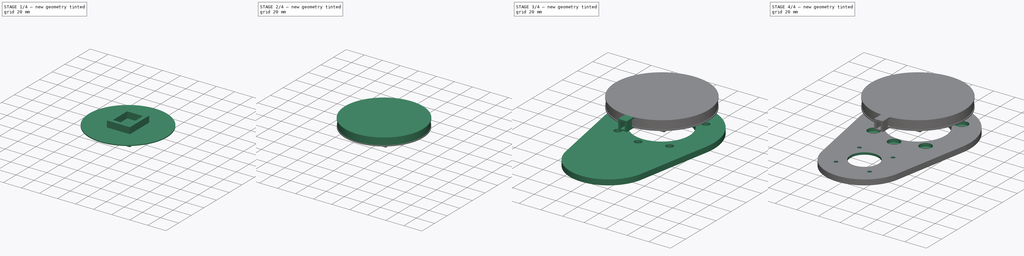
[diagram: build sequence overview — one tinted view per stage of 4, left to right]
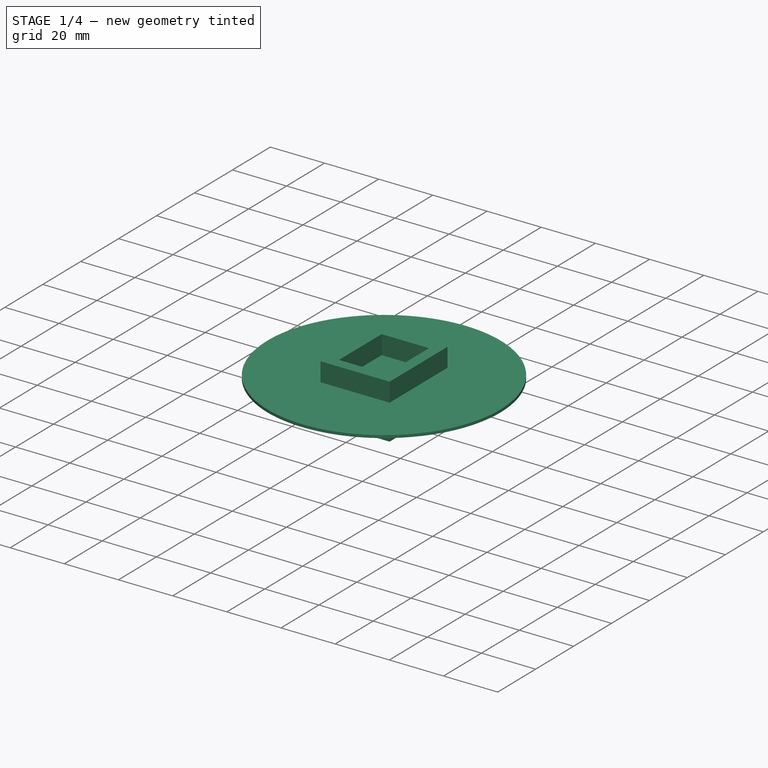
[diagram: stage 1 of 4 — iso view after this stage's code; geometry added in this stage tinted green]
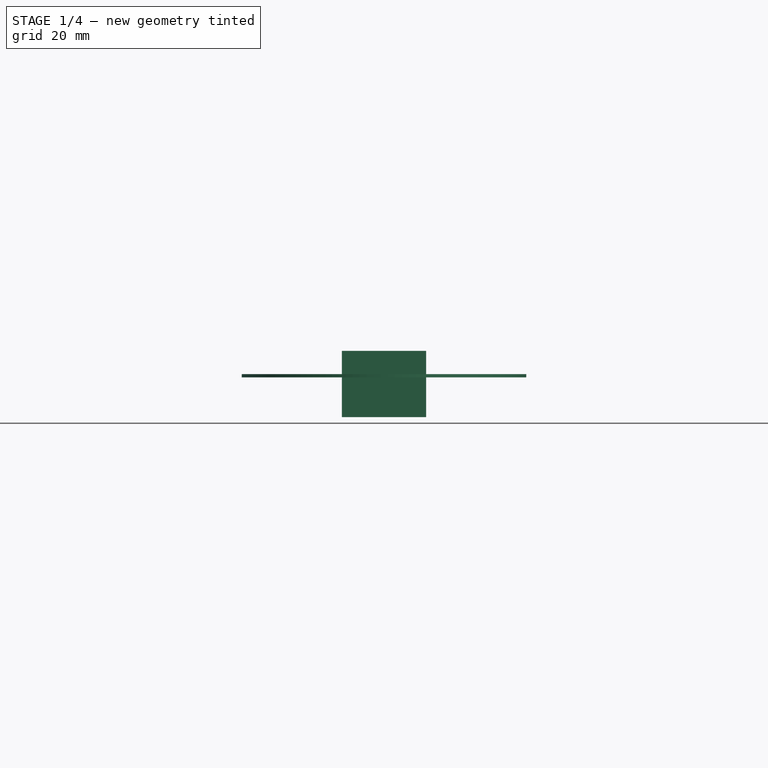
[diagram: stage 1 of 4 — front view after this stage's code; geometry added in this stage tinted green]
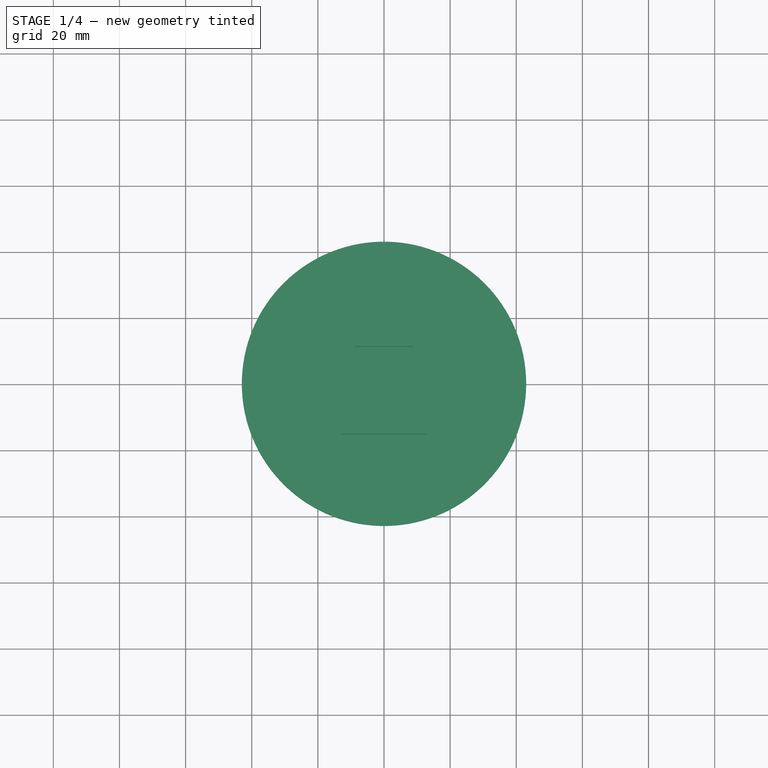
[diagram: stage 1 of 4 — top view after this stage's code; geometry added in this stage tinted green]
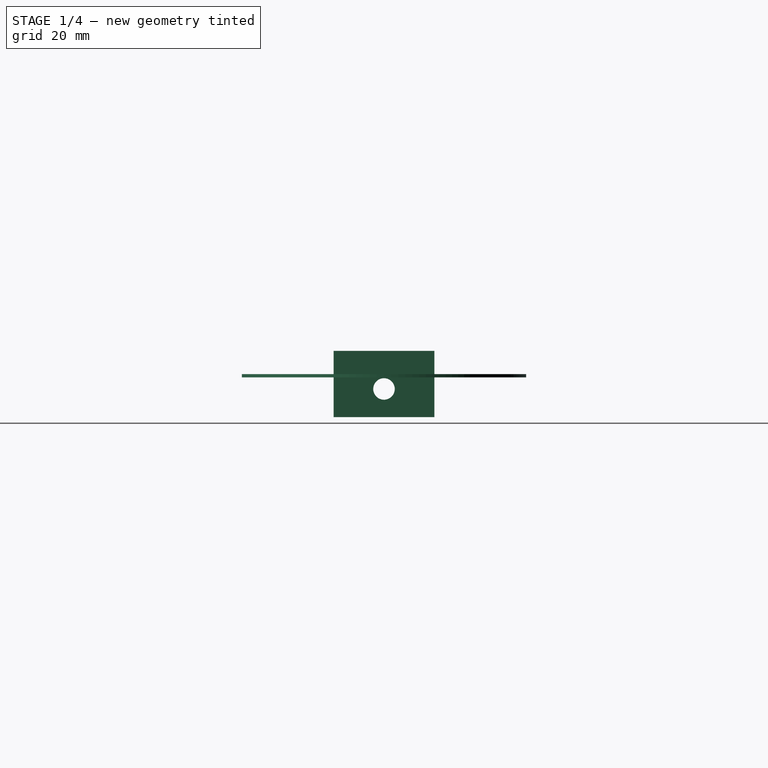
[diagram: stage 1 of 4 — right view after this stage's code; geometry added in this stage tinted green]
FCSTD DOCUMENT  (FreeCAD 0.21R33771 (Git))
Label: BypassMotor
License: All rights reserved
LicenseURL: http://en.wikipedia.org/wiki/All_rights_reserved
objects: Sketcher::SketchObject×12, PartDesign::Pocket×7, PartDesign::Pad×6, PartDesign::Body×2
note: 40 computed .brp shape members not serialized (recipe doc carries the construction recipe); baked Part::Feature solids carry a one-line shape summary decoded from their .brp

FEATURE [Sketcher::SketchObject] Sketch001  label="GearAttachmentSketch"
  AttachmentOffset = pos=(0,0,10) rot=(0,0,1;0rad)
  FullyConstrained = true
  MapMode = 5
  Placement = pos=(0,0,10) rot=(0,0,1;0rad)
  Support = -> [XY_Plane001]
  sketch-geometry (10):
    g0: LineSegment StartX=-8.75 StartY=11.25 StartZ=0 EndX=-8.75 EndY=-11.25 EndZ=0
    g1: LineSegment StartX=-8.75 StartY=-11.25 StartZ=0 EndX=8.75 EndY=-11.25 EndZ=0
    g2: LineSegment StartX=8.75 StartY=-11.25 StartZ=0 EndX=8.75 EndY=11.25 EndZ=0
    g3: LineSegment StartX=8.75 StartY=11.25 StartZ=0 EndX=-8.75 EndY=11.25 EndZ=0
    g4: GeomPoint X=0 Y=0 Z=0
    g5: LineSegment StartX=-12.75 StartY=15.25 StartZ=0 EndX=-12.75 EndY=-15.25 EndZ=0
    g6: LineSegment StartX=-12.75 StartY=-15.25 StartZ=0 EndX=12.75 EndY=-15.25 EndZ=0
    g7: LineSegment StartX=12.75 StartY=-15.25 StartZ=0 EndX=12.75 EndY=15.25 EndZ=0
    g8: LineSegment StartX=12.75 StartY=15.25 StartZ=0 EndX=-12.75 EndY=15.25 EndZ=0
    g9: GeomPoint X=0 Y=0 Z=0
  constraints (24):
    c: Coincident(g0,g1)
    c: Coincident(g1,g2)
    c: Coincident(g2,g3)
    c: Coincident(g3,g0)
    c: Horizontal(g1)
    c: Horizontal(g3)
    c: Vertical(g0)
    c: Vertical(g2)
    c: Symmetric(g1,g0,g4)
    c: Coincident(g5,g6)
    c: Coincident(g6,g7)
    c: Coincident(g7,g8)
    c: Coincident(g8,g5)
    c: Horizontal(g6)
    c: Horizontal(g8)
    c: Vertical(g5)
    c: Vertical(g7)
    c: Symmetric(g6,g5,g9)
    c: Coincident(g9,g4)
    c: DistanceX(g3,g3) = 17.5  'holeWidht'
    c: DistanceY(g2,g2) = 22.5  'holeHeight'
    c: DistanceX(g2,g7) = 4
    c: DistanceY(g2,g7) = 4
    c: Coincident(g4,g-1)
FEATURE [PartDesign::Pad] Pad001  label="GearAttachementPad"
  Direction = (0,0,1)
  Length = 20
  Length2 = 10
  Profile = -> Sketch001
  ReferenceAxis = -> Sketch001 [N_Axis]
  Type = 0
FEATURE [Sketcher::SketchObject] Sketch002  label="GearSkrewSketch"
  FullyConstrained = true
  MapMode = 5
  Placement = pos=(0,0,0) rot=(0.57735,0.57735,0.57735;2.0944rad)
  Support = -> [YZ_Plane001]
  sketch-geometry (1):
    g0: Circle CenterX=0 CenterY=18.5 CenterZ=0 NormalX=0 NormalY=0 NormalZ=1 AngleXU=0 Radius=3.25
  constraints (3):
    c: PointOnObject(g0,g-2)
    c: Diameter(g0) = 6.5
    c: DistanceY(g-1,g0) = 18.5
FEATURE [PartDesign::Pocket] Pocket  label="GearSkrewPocket"
  BaseFeature = -> Pad001
  Direction = (-1,2e-16,-3e-16)
  Length = 5
  Length2 = 5
  Midplane = true
  Profile = -> Sketch002
  ReferenceAxis = -> Sketch002 [N_Axis]
  Type = 1
FEATURE [Sketcher::SketchObject] Sketch003  label="GearBaseSketch"
  AttachmentOffset = pos=(0,0,22) rot=(0,0,1;0rad)
  FullyConstrained = true
  MapMode = 5
  Placement = pos=(0,0,22) rot=(0,0,1;0rad)
  Support = -> [XY_Plane001]
  sketch-geometry (1):
    g0: Circle CenterX=0 CenterY=0 CenterZ=0 NormalX=0 NormalY=0 NormalZ=1 AngleXU=0 Radius=43
  constraints (2):
    c: Coincident(g0,g-1)
    c: Diameter(g0) = 86
FEATURE [PartDesign::Pad] Pad002  label="GearBasePad"
  BaseFeature = -> Pocket
  Direction = (0,0,1)
  Length = 1
  Length2 = 10
  Profile = -> Sketch003
  ReferenceAxis = -> Sketch003 [N_Axis]
  Type = 0
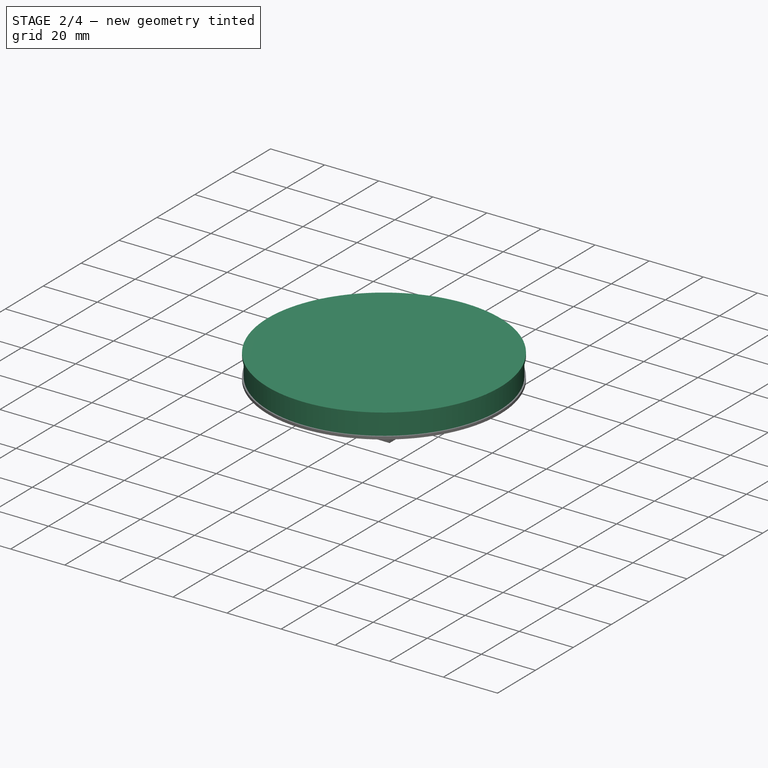
[diagram: stage 2 of 4 — iso view after this stage's code; geometry added in this stage tinted green]
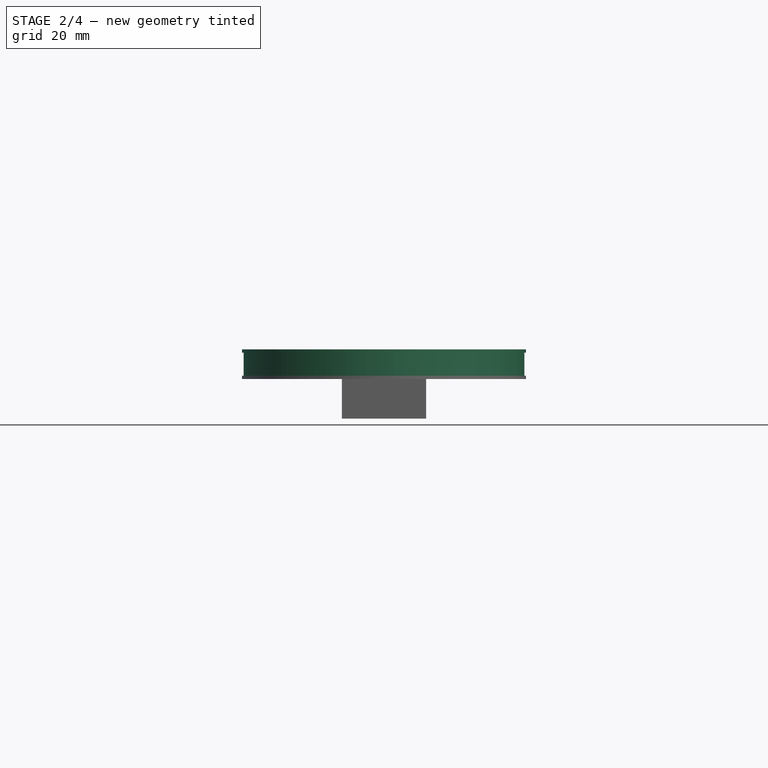
[diagram: stage 2 of 4 — front view after this stage's code; geometry added in this stage tinted green]
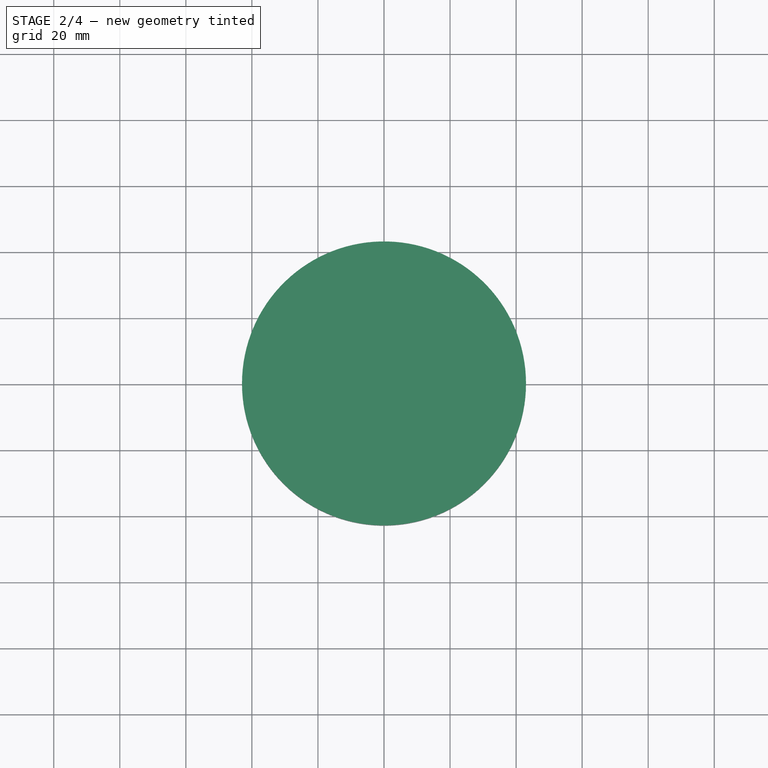
[diagram: stage 2 of 4 — top view after this stage's code; geometry added in this stage tinted green]
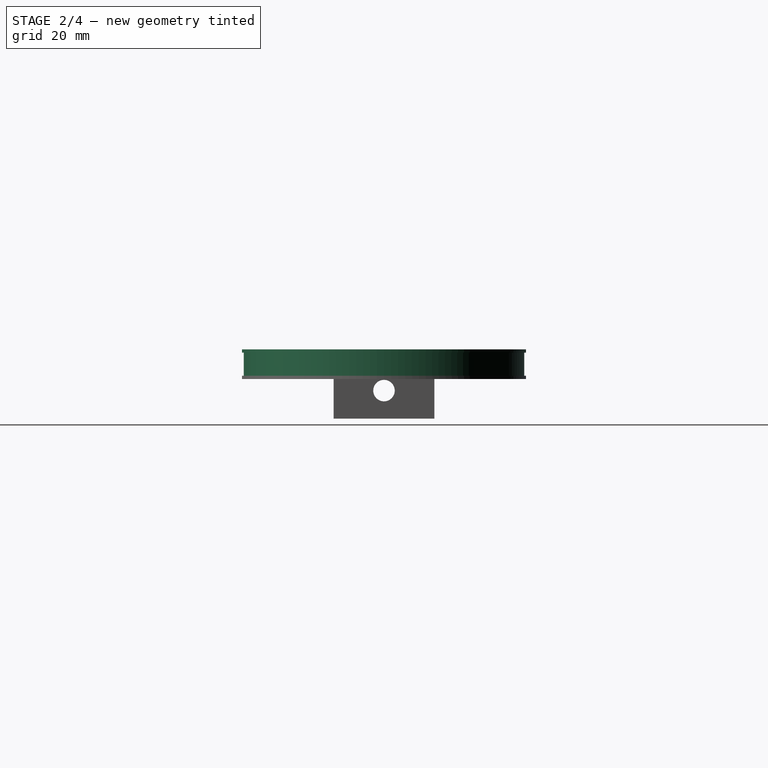
[diagram: stage 2 of 4 — right view after this stage's code; geometry added in this stage tinted green]
FEATURE [Sketcher::SketchObject] Sketch004  label="TopPlateSketch"
  AttachmentOffset = pos=(0,0,30) rot=(0,0,1;0rad)
  FullyConstrained = true
  MapMode = 5
  Placement = pos=(0,0,30) rot=(0,0,1;0rad)
  Support = -> [XY_Plane001]
  sketch-geometry (1):
    g0: Circle CenterX=0 CenterY=0 CenterZ=0 NormalX=0 NormalY=0 NormalZ=1 AngleXU=0 Radius=43
  constraints (2):
    c: Coincident(g0,g-1)
    c: Diameter(g0) = 86  'Diameter'
FEATURE [PartDesign::Pad] Pad004  label="TopPlatePad"
  BaseFeature = -> Pad002
  Direction = (0,0,1)
  Length = 1
  Length2 = 10
  Profile = -> Sketch004
  ReferenceAxis = -> Sketch004 [N_Axis]
  Type = 0
FEATURE [PartDesign::Body] Body  label="MainBody"
  Group = -> [Sketch,Pad,Sketch005,Pocket001,Sketch007,Pocket003,Sketch009,Pocket006]
  Origin = -> Origin
  Tip = -> Pocket006
FEATURE [Sketcher::SketchObject] Sketch010  label="BaseCylinderSketch"
  AttachmentOffset = pos=(0,0,23) rot=(0,0,1;0rad)
  FullyConstrained = true
  MapMode = 5
  Placement = pos=(0,0,23) rot=(0,0,1;0rad)
  Support = -> [XY_Plane001]
  sketch-geometry (1):
    g0: Circle CenterX=0 CenterY=0 CenterZ=0 NormalX=0 NormalY=0 NormalZ=1 AngleXU=0 Radius=42.5
  constraints (2):
    c: Coincident(g0,g-1)
    c: Diameter(g0) = 85  'Diameter'
FEATURE [PartDesign::Pad] Pad005  label="BaseCylinderPad"
  BaseFeature = -> Pad004
  Direction = (0,0,1)
  Length = 8
  Length2 = 10
  Profile = -> Sketch010
  ReferenceAxis = -> Sketch010 [N_Axis]
  Type = 0
FEATURE [PartDesign::Pocket] Pocket007  label="AttachmentPodHeadroomPocket"
  BaseFeature = -> Pad005
  Direction = (0,0,1)
  Length = 5
  Length2 = 5
  Profile = -> Pad005 [Face20]
  Type = 0
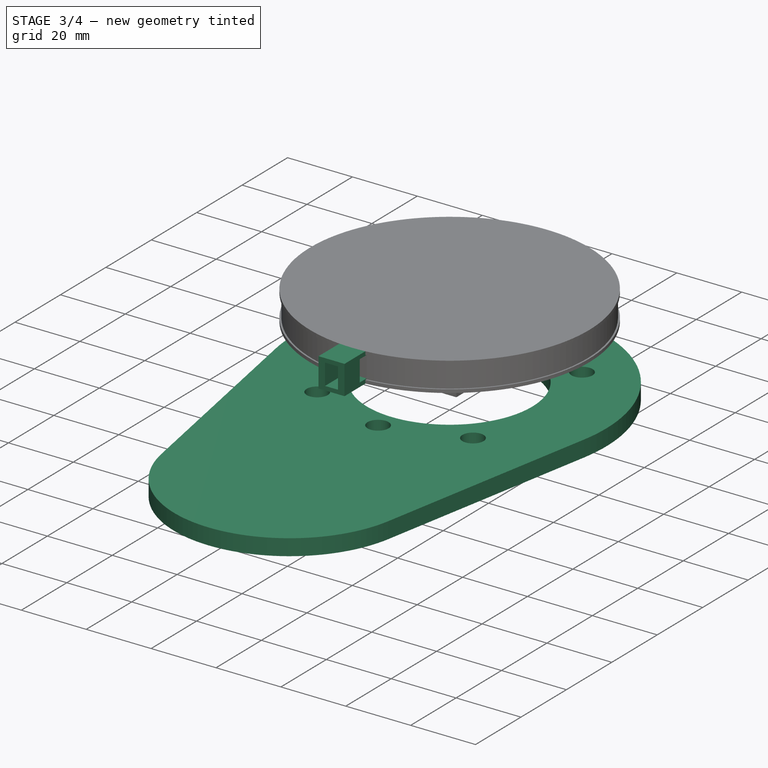
[diagram: stage 3 of 4 — iso view after this stage's code; geometry added in this stage tinted green]
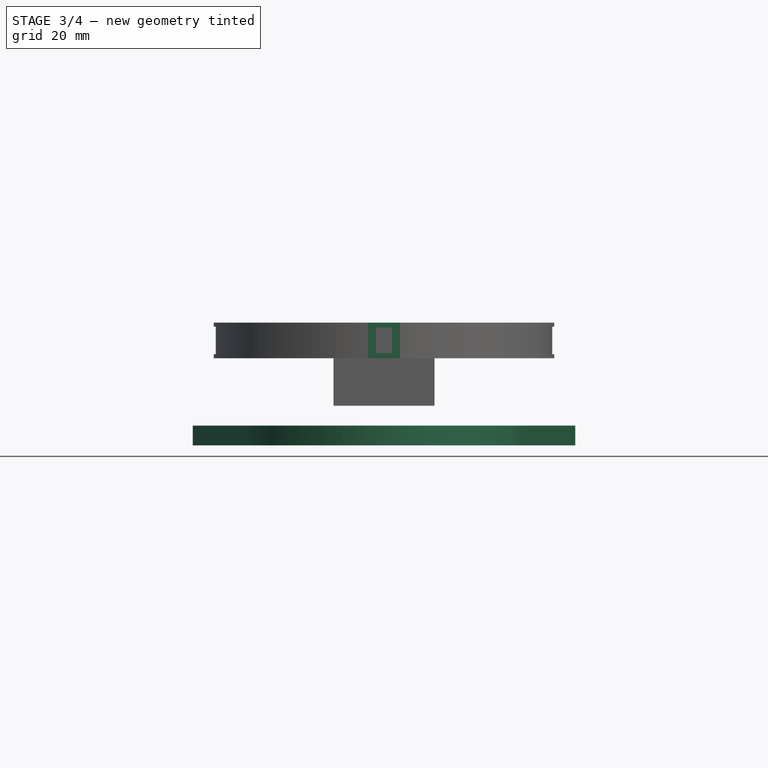
[diagram: stage 3 of 4 — front view after this stage's code; geometry added in this stage tinted green]
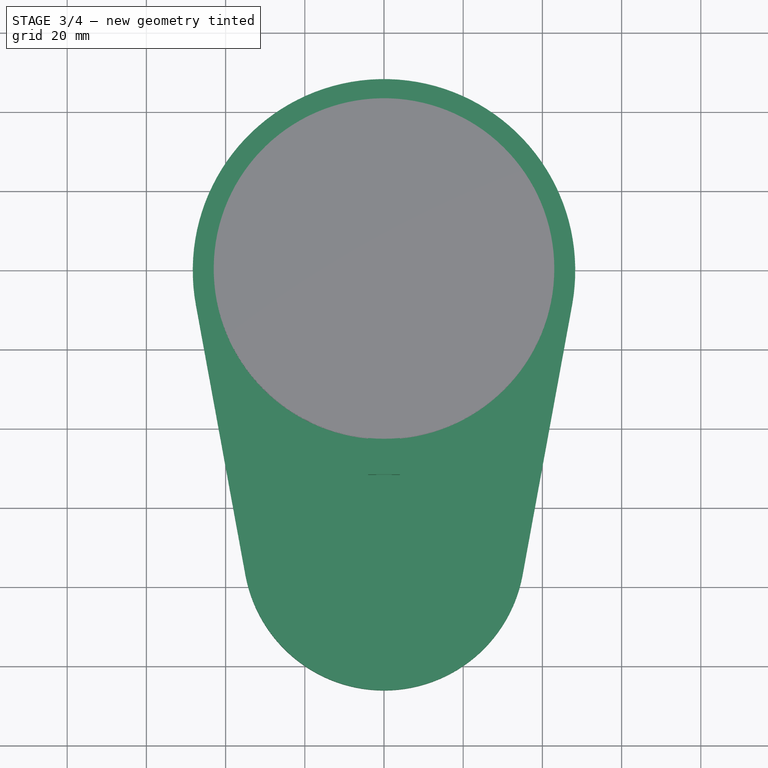
[diagram: stage 3 of 4 — top view after this stage's code; geometry added in this stage tinted green]
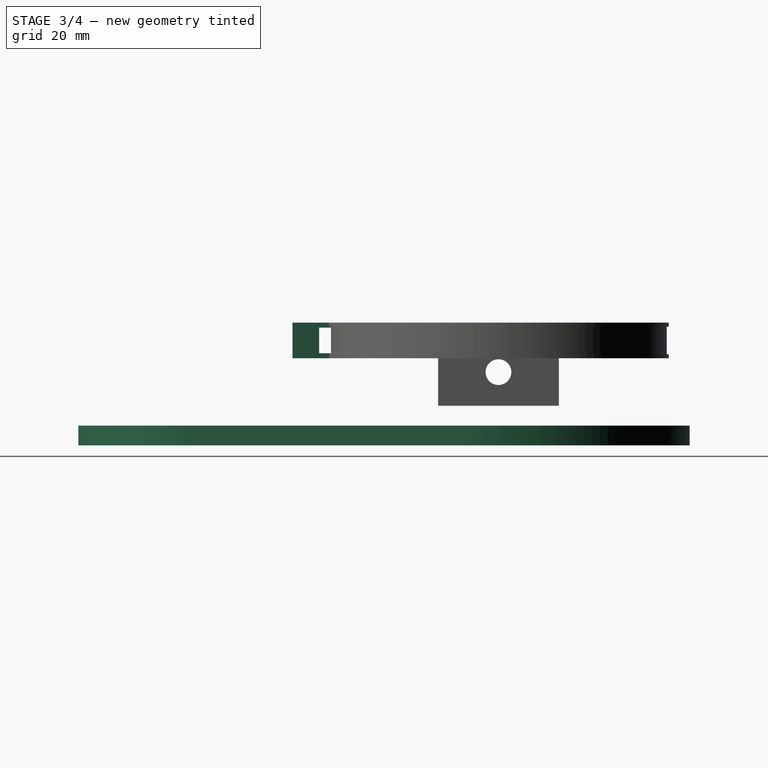
[diagram: stage 3 of 4 — right view after this stage's code; geometry added in this stage tinted green]
FEATURE [Sketcher::SketchObject] Sketch  label="AttachementSketch"
  FullyConstrained = true
  MapMode = 5
  Support = -> [XY_Plane]
  expr: Constraints[12] = .Constraints.skrewDia
  expr: Constraints[23] = <<StepperSkrewSketch>>.Constraints.headDepthOffset
  sketch-geometry (12):
    g0: GeomPoint X=0 Y=0 Z=0
    g1: Circle CenterX=0 CenterY=0 CenterZ=0 NormalX=0 NormalY=0 NormalZ=1 AngleXU=0 Radius=25.5
    g2: Circle CenterX=-24 CenterY=24 CenterZ=0 NormalX=0 NormalY=0 NormalZ=1 AngleXU=0 Radius=3.25
    g3: Circle CenterX=0 CenterY=31.5 CenterZ=0 NormalX=0 NormalY=0 NormalZ=1 AngleXU=0 Radius=3.25
    g4: Circle CenterX=24 CenterY=24 CenterZ=0 NormalX=0 NormalY=0 NormalZ=1 AngleXU=0 Radius=3.25
    g5: Circle CenterX=0 CenterY=-31.5 CenterZ=0 NormalX=0 NormalY=0 NormalZ=1 AngleXU=0 Radius=3.25
    g6: Circle CenterX=24 CenterY=-24 CenterZ=0 NormalX=0 NormalY=0 NormalZ=1 AngleXU=0 Radius=3.25
    g7: Circle CenterX=-24 CenterY=-24 CenterZ=0 NormalX=0 NormalY=0 NormalZ=1 AngleXU=0 Radius=3.25
    g8: ArcOfCircle CenterX=0 CenterY=0 CenterZ=0 NormalX=0 NormalY=0 NormalZ=1 AngleXU=0 Radius=48.291 StartAngle=6.10194 EndAngle=9.60603
    g9: ArcOfCircle CenterX=-9e-15 CenterY=-70.5 CenterZ=0 NormalX=0 NormalY=0 NormalZ=1 AngleXU=0 Radius=35.5829 StartAngle=3.32284 EndAngle=6.10194
    g10: LineSegment StartX=-47.5 StartY=-8.70483 StartZ=0 EndX=-35 EndY=-76.9141 EndZ=0
    g11: LineSegment StartX=35 StartY=-76.9141 StartZ=0 EndX=47.5 EndY=-8.70483 EndZ=0
  constraints (27):
    c: Coincident(g0,g-1)
    c: Coincident(g1,g0)
    c: Diameter(g1) = 51
    c: PointOnObject(g3,g-2)
    c: Vertical(g7,g2)
    c: Horizontal(g2,g4)
    c: DistanceY(g6,g4) = 48
    c: Diameter(g2) = 6.5  'skrewDia'
    c: Equal(g3,g4)
    c: Equal(g3,g6)
    c: Equal(g3,g5)
    c: Equal(g3,g7)
    c: Diameter(g3) = 6.5
    c: DistanceX(g7,g6) = 48
    c: Symmetric(g7,g6,g-2)
    c: Symmetric(g4,g6,g-1)
    c: Symmetric(g3,g5,g1)
    c: DistanceY(g5,g3) = 63
    c: Tangent(g8,g10) = -1.5708
    c: Tangent(g10,g9) = -1.5708
    c: Tangent(g9,g11) = -1.5708
    c: Tangent(g11,g8) = -1.5708
    c: DistanceX(g8,g8) = 95
    c: DistanceY(g9,g1) = 70.5
    c: DistanceX(g9,g9) = 70
    c: Horizontal(g8,g8)
    c: Coincident(g8,g1)
FEATURE [PartDesign::Pad] Pad  label="AttachementPad"
  Direction = (0,0,1)
  Length = 5
  Length2 = 10
  Profile = -> Sketch
  ReferenceAxis = -> Sketch [N_Axis]
  Type = 0
FEATURE [Sketcher::SketchObject] Sketch011  label="BeltAttachmentSketch"
  AttachmentOffset = pos=(0,0,42) rot=(0,0,1;0rad)
  FullyConstrained = true
  MapMode = 5
  Placement = pos=(0,-42,-9.3e-15) rot=(1,0,0;1.5708rad)
  Support = -> [XZ_Plane001]
  sketch-geometry (5):
    g0: LineSegment StartX=-4 StartY=31 StartZ=0 EndX=-4 EndY=22 EndZ=0
    g1: LineSegment StartX=-4 StartY=22 StartZ=0 EndX=4 EndY=22 EndZ=0
    g2: LineSegment StartX=4 StartY=22 StartZ=0 EndX=4 EndY=31 EndZ=0
    g3: LineSegment StartX=4 StartY=31 StartZ=0 EndX=-4 EndY=31 EndZ=0
    g4: GeomPoint X=0 Y=26.5 Z=0
  constraints (13):
    c: Coincident(g0,g1)
    c: Coincident(g1,g2)
    c: Coincident(g2,g3)
    c: Coincident(g3,g0)
    c: Horizontal(g1)
    c: Horizontal(g3)
    c: Vertical(g0)
    c: Vertical(g2)
    c: Symmetric(g1,g0,g4)
    c: PointOnObject(g4,g-2)
    c: DistanceY(g2,g2) = 9
    c: DistanceX(g3,g3) = 8
    c: DistanceY(g-1,g4) = 26.5
FEATURE [PartDesign::Pad] Pad006  label="BeltAttachmentPad"
  BaseFeature = -> Pocket007
  Direction = (0,-1,-2e-16)
  Length = 10
  Length2 = 10
  Profile = -> Sketch011
  ReferenceAxis = -> Sketch011 [N_Axis]
  Type = 0
FEATURE [Sketcher::SketchObject] Sketch013  label="BeltSideOpeningSketch"
  ExternalGeometry = -> [Pad006]
  FullyConstrained = true
  MapMode = 5
  Placement = pos=(4,0,0) rot=(0.57735,0.57735,0.57735;2.0944rad)
  Support = -> [Pad006]
  sketch-geometry (4):
    g0: LineSegment StartX=-45.3 StartY=29.75 StartZ=0 EndX=-42.3 EndY=29.75 EndZ=0
    g1: LineSegment StartX=-42.3 StartY=29.75 StartZ=0 EndX=-42.3 EndY=23.25 EndZ=0
    g2: LineSegment StartX=-42.3 StartY=23.25 StartZ=0 EndX=-45.3 EndY=23.25 EndZ=0
    g3: LineSegment StartX=-45.3 StartY=23.25 StartZ=0 EndX=-45.3 EndY=29.75 EndZ=0
  constraints (12):
    c: Coincident(g0,g1)
    c: Coincident(g1,g2)
    c: Coincident(g2,g3)
    c: Coincident(g3,g0)
    c: Horizontal(g0)
    c: Horizontal(g2)
    c: Vertical(g3)
    c: DistanceY(g0,g-4) = 0.25
    c: DistanceY(g-3,g2) = 0.25
    c: DistanceX(g0,g-1) = 42.3
    c: Vertical(g1)
    c: DistanceX(g0,g0) = 3
FEATURE [PartDesign::Pocket] Pocket008  label="BeltSideOpeningPocket"
  BaseFeature = -> Pad006
  Direction = (-1,0,0)
  Length = 5
  Length2 = 5
  Midplane = true
  Profile = -> Sketch013
  ReferenceAxis = -> Sketch013 [N_Axis]
  Type = 1
FEATURE [Sketcher::SketchObject] Sketch014  label="BeltFrontOpeningSketch"
  FullyConstrained = true
  MapMode = 5
  Placement = pos=(0,-45.3,0) rot=(0,0.707107,0.707107;3.14159rad)
  Support = -> [Pocket008]
  sketch-geometry (5):
    g0: LineSegment StartX=-2 StartY=23.25 StartZ=0 EndX=-2 EndY=29.75 EndZ=0
    g1: LineSegment StartX=-2 StartY=29.75 StartZ=0 EndX=2 EndY=29.75 EndZ=0
    g2: LineSegment StartX=2 StartY=29.75 StartZ=0 EndX=2 EndY=23.25 EndZ=0
    g3: LineSegment StartX=2 StartY=23.25 StartZ=0 EndX=-2 EndY=23.25 EndZ=0
    g4: GeomPoint X=0 Y=26.5 Z=0
  constraints (13):
    c: Coincident(g0,g1)
    c: Coincident(g1,g2)
    c: Coincident(g2,g3)
    c: Coincident(g3,g0)
    c: Horizontal(g1)
    c: Horizontal(g3)
    c: Vertical(g0)
    c: Vertical(g2)
    c: Symmetric(g1,g0,g4)
    c: PointOnObject(g4,g-2)
    c: DistanceY(g0,g0) = 6.5
    c: DistanceY(g-1,g4) = 26.5
    c: DistanceX(g1,g1) = 4
FEATURE [PartDesign::Pocket] Pocket009  label="BeltFrontOpeningPocket"
  BaseFeature = -> Pocket008
  Direction = (0,-1,2e-16)
  Length = 9
  Length2 = 5
  Profile = -> Sketch014
  ReferenceAxis = -> Sketch014 [N_Axis]
  Type = 0
FEATURE [PartDesign::Body] Body001  label="GearBody"
  Group = -> [Sketch001,Pad001,Sketch002,Pocket,Sketch003,Pad002,Sketch004,Pad004,Sketch010,Pad005,Pocket007,Sketch011,Pad006,Sketch013,Pocket008,Sketch014,Pocket009]
  Origin = -> Origin001
  Tip = -> Pocket009
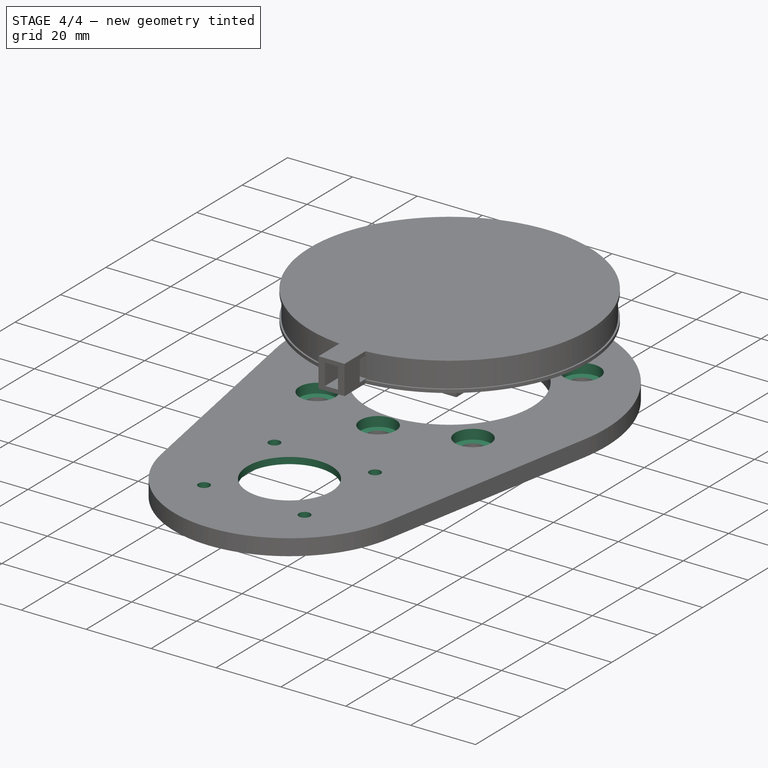
[diagram: stage 4 of 4 — iso view after this stage's code; geometry added in this stage tinted green]
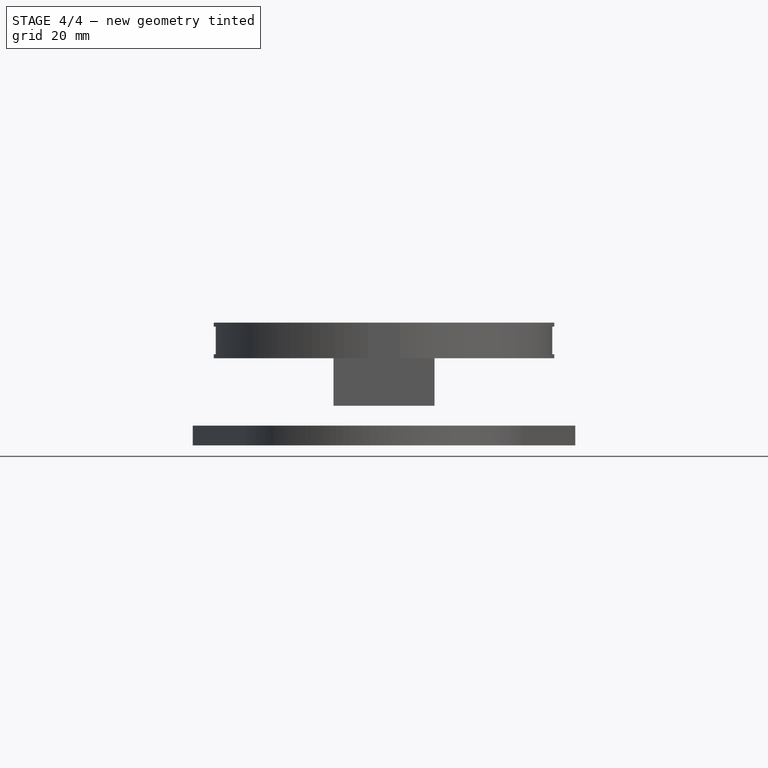
[diagram: stage 4 of 4 — front view after this stage's code; geometry added in this stage tinted green]
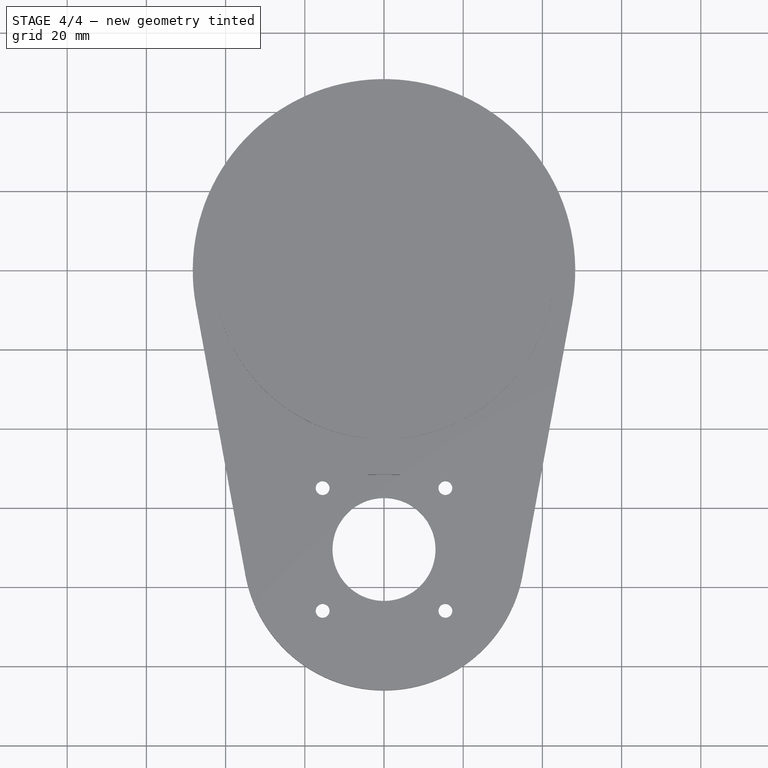
[diagram: stage 4 of 4 — top view after this stage's code; geometry added in this stage tinted green]
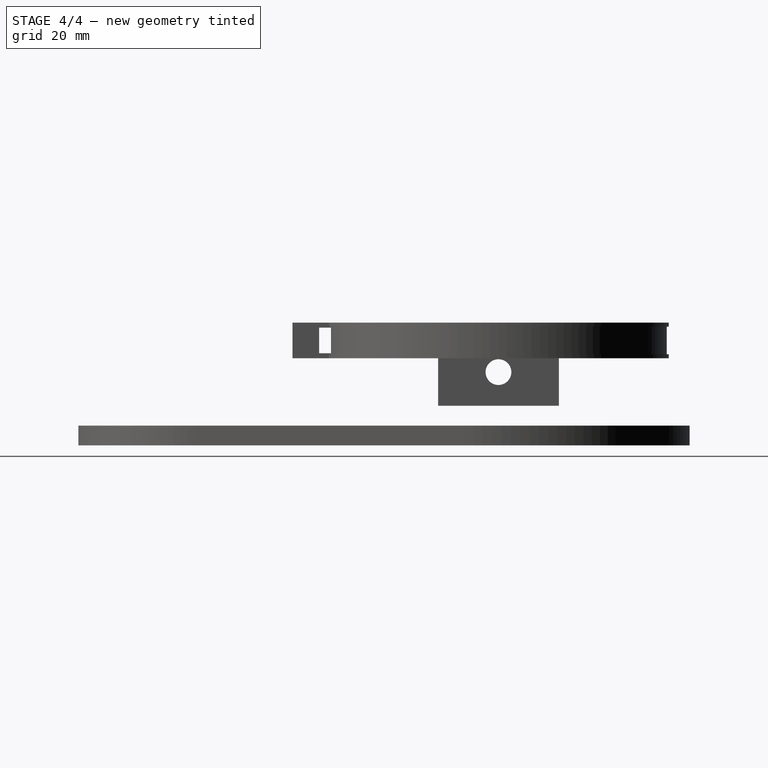
[diagram: stage 4 of 4 — right view after this stage's code; geometry added in this stage tinted green]
FEATURE [Sketcher::SketchObject] Sketch005  label="BaseSkrewHeadSketch"
  AttachmentOffset = pos=(0,0,2) rot=(0,0,1;0rad)
  ExternalGeometry = -> [Pad]
  FullyConstrained = true
  MapMode = 5
  Placement = pos=(0,0,2) rot=(0,0,1;0rad)
  Support = -> [XY_Plane]
  sketch-geometry (6):
    g0: Circle CenterX=-24 CenterY=24 CenterZ=0 NormalX=0 NormalY=0 NormalZ=1 AngleXU=0 Radius=5.5
    g1: Circle CenterX=24 CenterY=-24 CenterZ=0 NormalX=0 NormalY=0 NormalZ=1 AngleXU=0 Radius=5.5
    g2: Circle CenterX=0 CenterY=31.5 CenterZ=0 NormalX=0 NormalY=0 NormalZ=1 AngleXU=0 Radius=5.5
    g3: Circle CenterX=24 CenterY=24 CenterZ=0 NormalX=0 NormalY=0 NormalZ=1 AngleXU=0 Radius=5.5
    g4: Circle CenterX=-24 CenterY=-24 CenterZ=0 NormalX=0 NormalY=0 NormalZ=1 AngleXU=0 Radius=5.5
    g5: Circle CenterX=0 CenterY=-31.5 CenterZ=0 NormalX=0 NormalY=0 NormalZ=1 AngleXU=0 Radius=5.5
  constraints (12):
    c: Coincident(g0,g-5)
    c: Coincident(g1,g-4)
    c: Coincident(g2,g-3)
    c: Coincident(g3,g-8)
    c: Coincident(g4,g-7)
    c: Coincident(g5,g-6)
    c: Equal(g3,g4)
    c: Equal(g3,g5)
    c: Equal(g3,g0)
    c: Equal(g3,g1)
    c: Equal(g3,g2)
    c: Diameter(g3) = 11  'skrewHeadDia'
FEATURE [PartDesign::Pocket] Pocket001  label="BaseSkrewHeadPocket"
  BaseFeature = -> Pad
  Direction = (0,0,-1)
  Length = 5
  Length2 = 5
  Profile = -> Sketch005
  ReferenceAxis = -> Sketch005 [N_Axis]
  Reversed = true
  Type = 0
FEATURE [Sketcher::SketchObject] Sketch007  label="StepperSkrewSketch"
  FullyConstrained = true
  MapMode = 5
  Support = -> [XY_Plane]
  expr: Constraints[3] = .Constraints.stepperSkrewDia
  sketch-geometry (6):
    g0: Circle CenterX=-15.5 CenterY=-55 CenterZ=0 NormalX=0 NormalY=0 NormalZ=1 AngleXU=0 Radius=1.75
    g1: Circle CenterX=15.5 CenterY=-55 CenterZ=0 NormalX=0 NormalY=0 NormalZ=1 AngleXU=0 Radius=1.75
    g2: Circle CenterX=15.5 CenterY=-86 CenterZ=0 NormalX=0 NormalY=0 NormalZ=1 AngleXU=0 Radius=1.75
    g3: Circle CenterX=-15.5 CenterY=-86 CenterZ=0 NormalX=0 NormalY=0 NormalZ=1 AngleXU=0 Radius=1.75
    g4: Circle CenterX=0 CenterY=-70.5 CenterZ=0 NormalX=0 NormalY=0 NormalZ=1 AngleXU=0 Radius=13
    g5: GeomPoint X=15.5 Y=-70.5 Z=0
  constraints (16):
    c: Diameter(g0) = 3.5  'stepperSkrewDia'
    c: Equal(g1,g3)
    c: Equal(g1,g2)
    c: Diameter(g1) = 3.5
    c: Horizontal(g3,g2)
    c: Vertical(g0,g3)
    c: Vertical(g2,g1)
    c: Symmetric(g0,g1,g-2)
    c: DistanceX(g0,g1) = 31
    c: DistanceY(g3,g0) = 31
    c: DistanceY(g0,g-1) = 55
    c: PointOnObject(g4,g-2)
    c: Diameter(g4) = 26
    c: Symmetric(g1,g2,g5)
    c: Horizontal(g5,g4)
    c: DistanceY(g4,g-1) = 70.5  'headDepthOffset'
FEATURE [PartDesign::Pocket] Pocket003  label="StepperSkrewPocket"
  BaseFeature = -> Pocket001
  Direction = (0,0,-1)
  Length = 5
  Length2 = 5
  Profile = -> Sketch007
  ReferenceAxis = -> Sketch007 [N_Axis]
  Reversed = true
  Type = 1
FEATURE [Sketcher::SketchObject] Sketch009
  FullyConstrained = true
  MapMode = 5
  Support = -> [XY_Plane]
  expr: Constraints[10] = <<StepperSkrewSketch>>.Constraints.headDepthOffset
  sketch-geometry (5):
    g0: LineSegment StartX=26 StartY=-93 StartZ=0 EndX=26 EndY=-48 EndZ=0
    g1: LineSegment StartX=26 StartY=-48 StartZ=0 EndX=-26 EndY=-48 EndZ=0
    g2: LineSegment StartX=-26 StartY=-48 StartZ=0 EndX=-26 EndY=-93 EndZ=0
    g3: LineSegment StartX=-26 StartY=-93 StartZ=0 EndX=26 EndY=-93 EndZ=0
    g4: GeomPoint X=0 Y=-70.5 Z=0
  constraints (13):
    c: Coincident(g0,g1)
    c: Coincident(g1,g2)
    c: Coincident(g2,g3)
    c: Coincident(g3,g0)
    c: Horizontal(g1)
    c: Horizontal(g3)
    c: Vertical(g0)
    c: Vertical(g2)
    c: Symmetric(g1,g0,g4)
    c: PointOnObject(g4,g-2)
    c: DistanceY(g4,g-1) = 70.5
    c: DistanceX(g3,g3) = 52
    c: DistanceY(g0,g0) = 45
FEATURE [PartDesign::Pocket] Pocket006
  BaseFeature = -> Pocket003
  Direction = (0,0,-1)
  Length = 3
  Length2 = 5
  Profile = -> Sketch009
  ReferenceAxis = -> Sketch009 [N_Axis]
  Reversed = true
  Type = 0
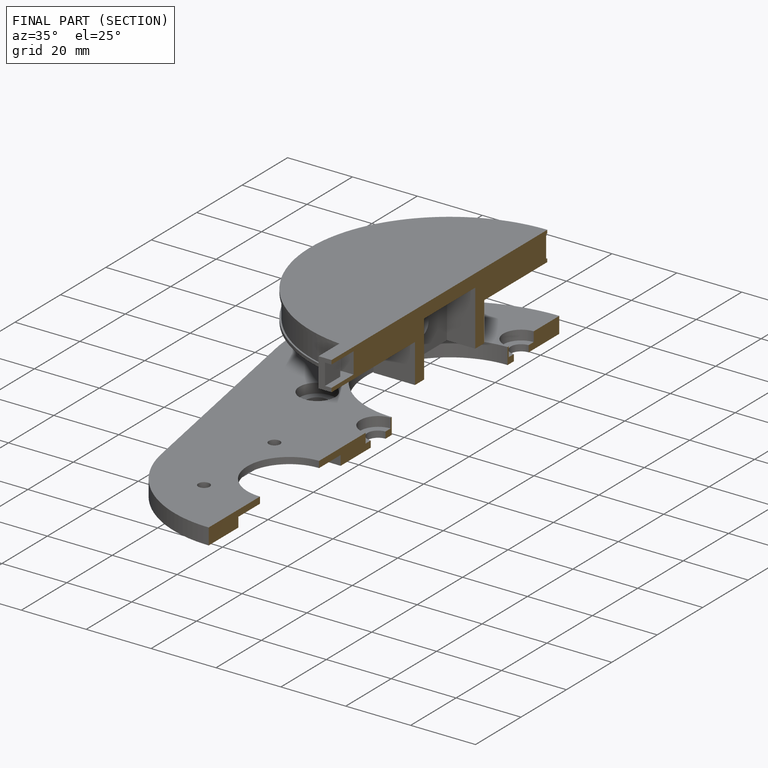
[diagram: finished part — half-section view (interior)]
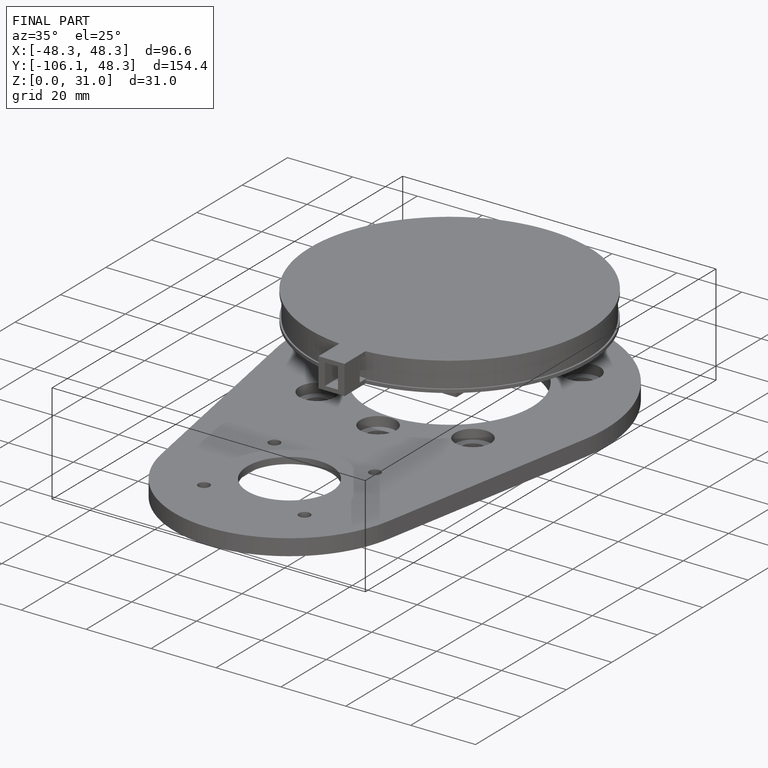
[diagram: finished part — iso view with bounding-box wireframe]
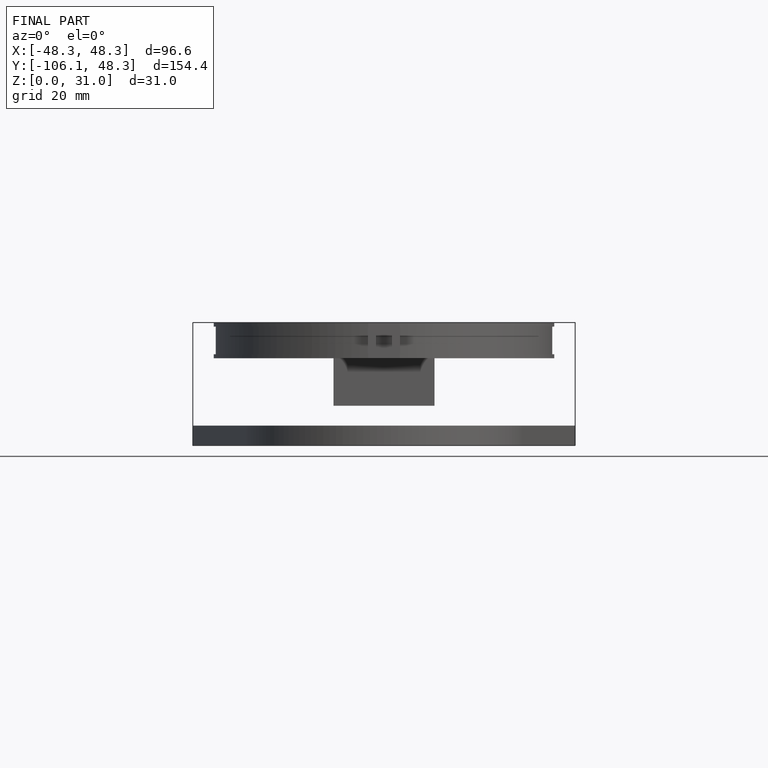
[diagram: finished part — front view with bounding-box wireframe]
